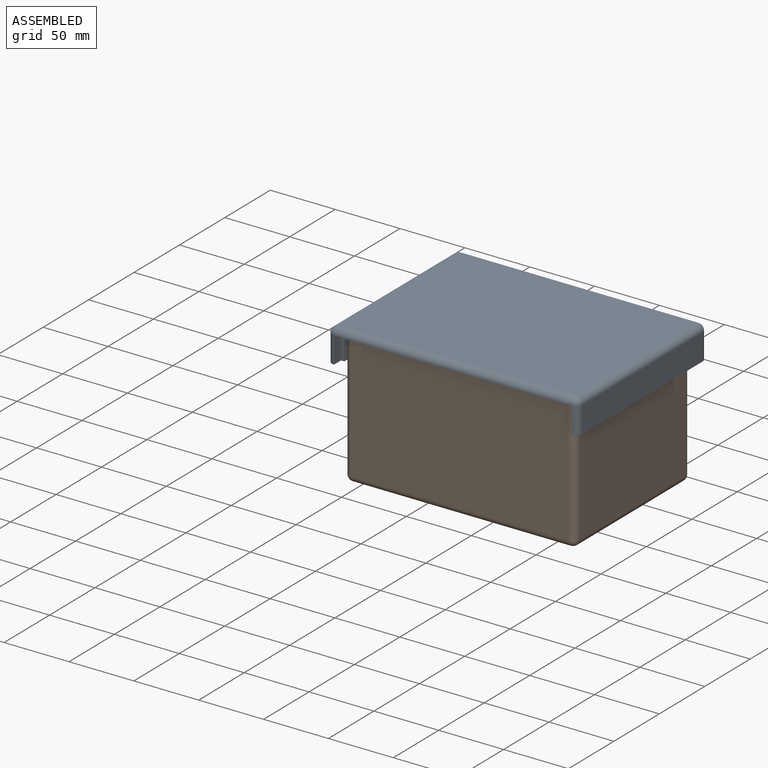
[diagram: assembled view]
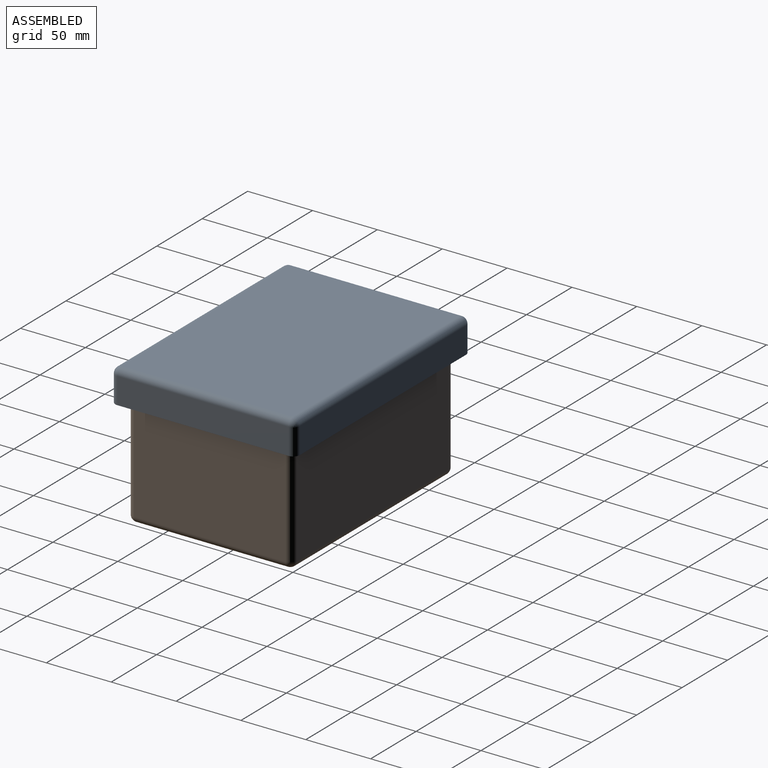
[diagram: assembled view, second angle]
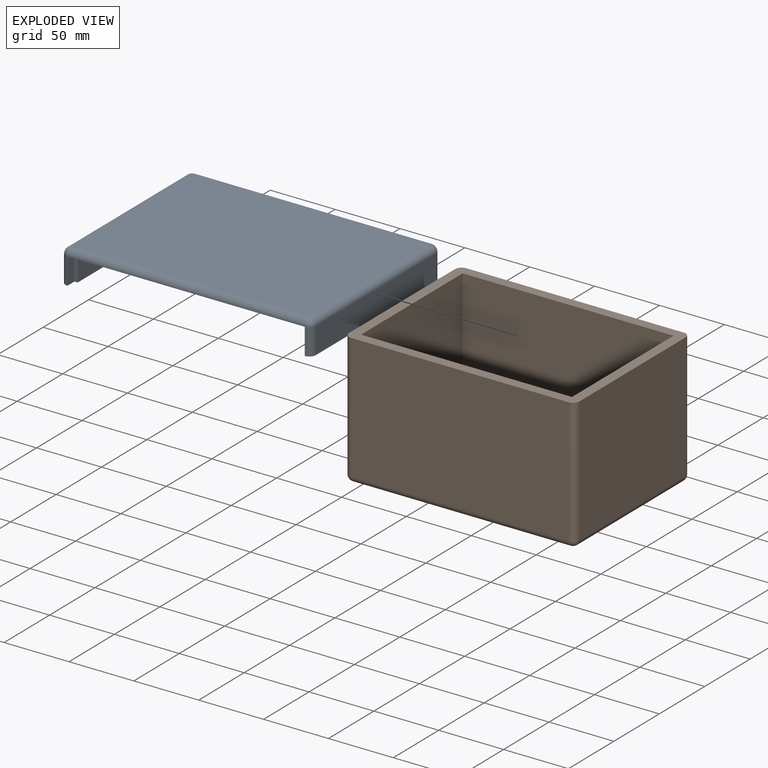
[diagram: exploded view]
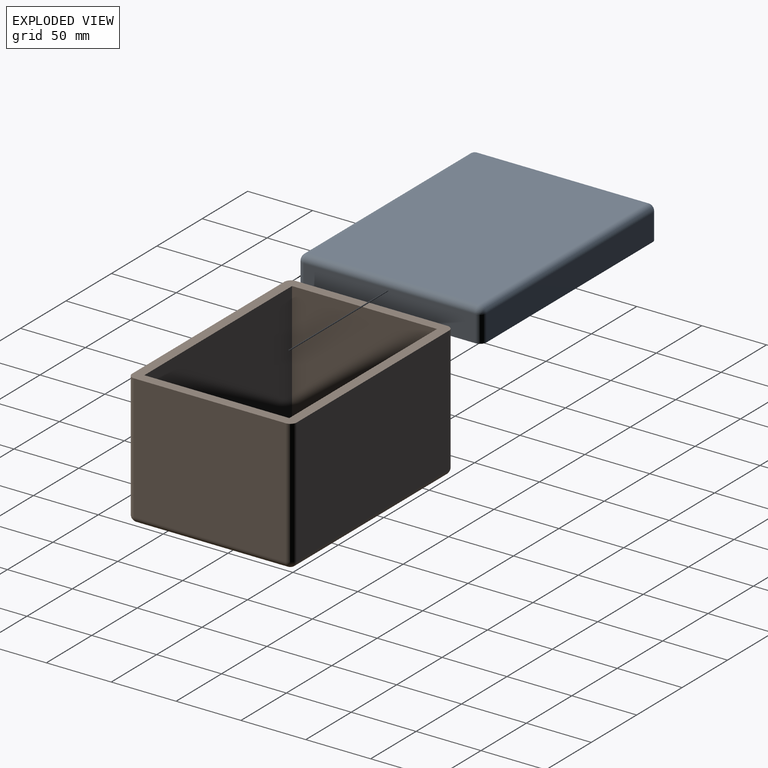
[diagram: exploded view, second angle]
ASSEMBLY  parts=2 mates=2
PART A: 25 faces, bbox 193x142.2x25.4 mm
  f0: plane 193.04x142.24mm, normal (0,0,1), area 3461.7mm2, adj f1,f2,f3,f5,f6,f7,f9,f11
  f1: plane 132.08x20.32mm, normal (-1,0,0), area 2683.9mm2, adj f0,f11,f17,f20
  f2: plane 182.88x20.32mm, normal (0,-1,0), area 3716.1mm2, adj f0,f9,f11,f12
  f3: plane 132.08x20.32mm, normal (1,0,0), area 2683.9mm2, adj f0,f9,f13,f14
  f4: plane 182.88x132.08mm, normal (0,0,-1), area 24154.8mm2, adj f12,f13,f17,f18
  f5: plane 127x17.78mm, normal (1,0,0), area 2258.1mm2, adj f0,f6,f8,f24
  f6: plane 177.8x17.78mm, normal (0,1,0), area 3161.3mm2, adj f0,f5,f7,f8
  f7: plane 127x17.78mm, normal (-1,0,0), area 2258.1mm2, adj f0,f6,f8,f24
  f8: plane 177.8x127mm, normal (0,0,1), area 22580.6mm2, adj f5,f6,f7,f24
  f9: cylinder r=5.08mm len=20.32mm, axis (0,0,-1), area 162.1mm2, adj f0,f2,f3,f10
  f10: sphere r=5.08mm, area 40.5mm2, adj f9,f12,f13
  f11: cylinder r=5.08mm len=20.32mm, axis (0,0,1), area 162.1mm2, adj f0,f1,f2,f15
  f12: cylinder r=5.08mm len=182.88mm, axis (1,0,0), area 1459.3mm2, adj f2,f4,f10,f15
  f13: cylinder r=5.08mm len=132.08mm, axis (0,1,0), area 1054mm2, adj f3,f4,f10,f16
  f14: cylinder r=5.08mm len=20.32mm, axis (0,0,1), area 162.1mm2, adj f0,f3,f16,f23
  f15: sphere r=5.08mm, area 40.5mm2, adj f11,f12,f17
  f16: sphere r=5.08mm, area 40.5mm2, adj f13,f14,f18
  f17: cylinder r=5.08mm len=132.08mm, axis (0,-1,0), area 1054mm2, adj f1,f4,f15,f19
  f18: cylinder r=5.08mm len=182.88mm, axis (-1,0,0), area 1459.3mm2, adj f4,f16,f19,f21
  f19: sphere r=5.08mm, area 40.5mm2, adj f17,f18,f20
  f20: cylinder r=5.08mm len=20.32mm, axis (0,0,-1), area 162.1mm2, adj f0,f1,f19,f22
  f21: plane 182.88x7.62mm, normal (0,0,1), area 1393.5mm2, adj f18,f22,f23,f24
  f22: plane 20.32x7.62mm, normal (1,0,0), area 154.8mm2, adj f0,f20,f21,f24
  f23: plane 20.32x7.62mm, normal (-1,0,0), area 154.8mm2, adj f0,f14,f21,f24
  f24: plane 182.88x20.32mm, normal (0,1,0), area 554.8mm2, adj f0,f5,f7,f8,f21,f22,f23
PART B: 23 faces, bbox 177.8x127x101.6 mm
  f0: plane 177.8x127mm, normal (0,0,1), area 4390.7mm2, adj f1,f2,f3,f4,f6,f7,f8,f9
  f1: plane 116.84x96.52mm, normal (-1,0,0), area 11277.4mm2, adj f0,f16,f20,f22
  f2: plane 167.64x96.52mm, normal (0,-1,0), area 16180.6mm2, adj f0,f13,f19,f22
  f3: plane 116.84x96.52mm, normal (1,0,0), area 11277.4mm2, adj f0,f11,f13,f14
  f4: plane 167.64x96.52mm, normal (0,1,0), area 16180.6mm2, adj f0,f11,f15,f16
  f5: plane 167.64x116.84mm, normal (0,0,-1), area 19587.1mm2, adj f14,f15,f19,f20
  f6: plane 111.76x93.98mm, normal (1,0,0), area 10503.2mm2, adj f0,f7,f9,f10
  f7: plane 162.56x93.98mm, normal (0,1,0), area 15277.4mm2, adj f0,f6,f8,f10
  f8: plane 111.76x93.98mm, normal (-1,0,0), area 10503.2mm2, adj f0,f7,f9,f10
  f9: plane 162.56x93.98mm, normal (0,-1,0), area 15277.4mm2, adj f0,f6,f8,f10
  f10: plane 162.56x111.76mm, normal (0,0,1), area 18167.7mm2, adj f6,f7,f8,f9
  f11: cylinder r=5.08mm len=96.52mm, axis (0,0,1), area 770.2mm2, adj f0,f3,f4,f12
  f12: sphere r=5.08mm, area 40.5mm2, adj f11,f14,f15
  f13: cylinder r=5.08mm len=96.52mm, axis (0,0,-1), area 770.2mm2, adj f0,f2,f3,f17
  f14: cylinder r=5.08mm len=116.84mm, axis (0,1,0), area 932.3mm2, adj f3,f5,f12,f17
  f15: cylinder r=5.08mm len=167.64mm, axis (-1,0,0), area 1337.7mm2, adj f4,f5,f12,f18
  f16: cylinder r=5.08mm len=96.52mm, axis (0,0,-1), area 770.2mm2, adj f0,f1,f4,f18
  f17: sphere r=5.08mm, area 40.5mm2, adj f13,f14,f19
  f18: sphere r=5.08mm, area 40.5mm2, adj f15,f16,f20
  f19: cylinder r=5.08mm len=167.64mm, axis (1,0,0), area 1337.7mm2, adj f2,f5,f17,f21
  f20: cylinder r=5.08mm len=116.84mm, axis (0,-1,0), area 932.3mm2, adj f1,f5,f18,f21
  f21: sphere r=5.08mm, area 40.5mm2, adj f19,f20,f22
  f22: cylinder r=5.08mm len=96.52mm, axis (0,0,1), area 770.2mm2, adj f0,f1,f2,f21
PLACE A rot(axis=(1,0,0),180deg) t=(14.36,43.27,109.22)mm
PLACE B at identity fixed
MATE planar A.f8 <-> B.f0  axis (0,0,-1) through (17.59,25.61,101.6)mm
MATE planar A.f8 <-> B.f0  axis (0,0,-1) through (17.59,25.61,101.6)mm
